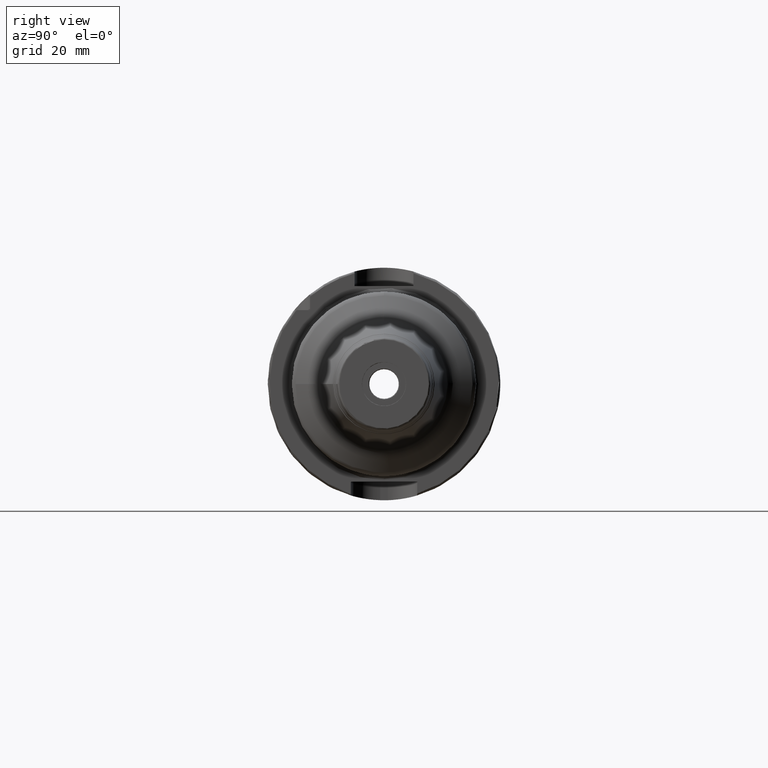
[diagram: clean part render]
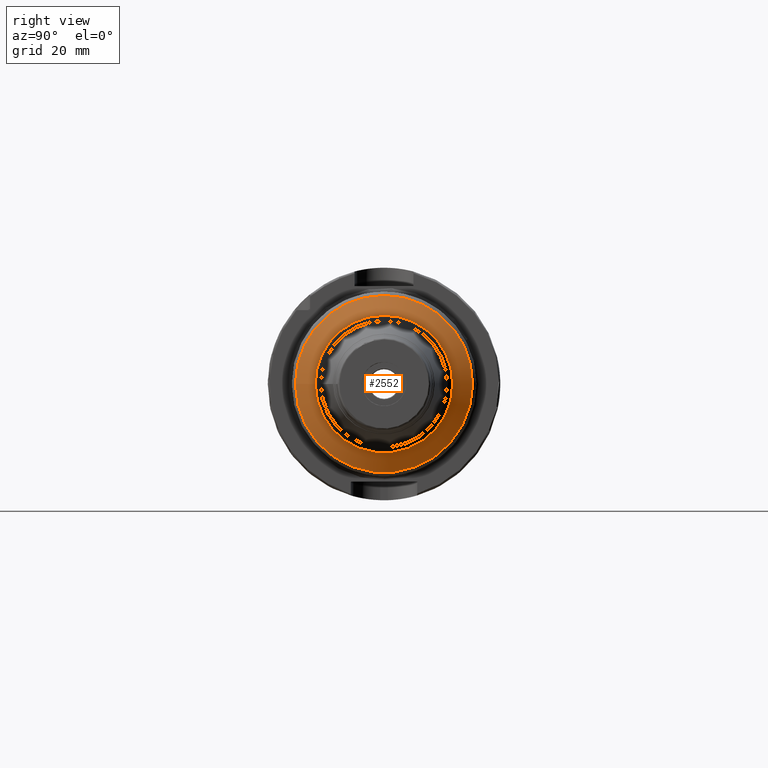
[diagram: same view with one face highlighted and labeled with its STEP entity id]
A machine part, right view. The second image highlights one B-rep face of the part: STEP entity #2552.
In plain terms, the highlighted conical surface has half-angle 60 deg.
Its self-contained STEP definition (entity closure, byte-faithful):
#97=CONICAL_SURFACE('',#2727,21.1083500677368,1.0471975511966);
#183=LINE('',#3987,#300);
#300=VECTOR('',#3131,21.1083500677368);
#446=FACE_OUTER_BOUND('',#583,.T.);
#583=EDGE_LOOP('',(#1704,#1705,#1706,#1707,#1708,#1709,#1710,#1711));
#737=CIRCLE('',#2720,18.627340422523);
#742=CIRCLE('',#2725,18.627340422523);
#743=CIRCLE('',#2726,18.627340422523);
#744=CIRCLE('',#2728,24.);
#745=CIRCLE('',#2729,24.);
#746=CIRCLE('',#2730,24.);
#970=VERTEX_POINT('',#3972);
#971=VERTEX_POINT('',#3973);
#975=VERTEX_POINT('',#3982);
#976=VERTEX_POINT('',#3986);
#977=VERTEX_POINT('',#3988);
#978=VERTEX_POINT('',#3990);
#1266=EDGE_CURVE('',#970,#971,#737,.T.);
#1271=EDGE_CURVE('',#971,#975,#742,.T.);
#1272=EDGE_CURVE('',#975,#970,#743,.T.);
#1273=EDGE_CURVE('',#975,#976,#183,.T.);
#1274=EDGE_CURVE('',#977,#976,#744,.T.);
#1275=EDGE_CURVE('',#978,#977,#745,.T.);
#1276=EDGE_CURVE('',#976,#978,#746,.T.);
#1704=ORIENTED_EDGE('',*,*,#1266,.F.);
#1705=ORIENTED_EDGE('',*,*,#1272,.F.);
#1706=ORIENTED_EDGE('',*,*,#1273,.T.);
#1707=ORIENTED_EDGE('',*,*,#1274,.F.);
#1708=ORIENTED_EDGE('',*,*,#1275,.F.);
#1709=ORIENTED_EDGE('',*,*,#1276,.F.);
#1710=ORIENTED_EDGE('',*,*,#1273,.F.);
#1711=ORIENTED_EDGE('',*,*,#1271,.F.);
#2552=ADVANCED_FACE('',(#446),#97,.T.);
#2720=AXIS2_PLACEMENT_3D('',#3974,#3115,#3116);
#2725=AXIS2_PLACEMENT_3D('',#3983,#3125,#3126);
#2726=AXIS2_PLACEMENT_3D('',#3984,#3127,#3128);
#2727=AXIS2_PLACEMENT_3D('',#3985,#3129,#3130);
#2728=AXIS2_PLACEMENT_3D('',#3989,#3132,#3133);
#2729=AXIS2_PLACEMENT_3D('',#3991,#3134,#3135);
#2730=AXIS2_PLACEMENT_3D('',#3992,#3136,#3137);
#3115=DIRECTION('center_axis',(1.,0.,0.));
#3116=DIRECTION('ref_axis',(0.,-1.,3.06161699786838E-17));
#3125=DIRECTION('center_axis',(1.,0.,0.));
#3126=DIRECTION('ref_axis',(0.,-1.,3.06161699786838E-17));
#3127=DIRECTION('center_axis',(1.,0.,0.));
#3128=DIRECTION('ref_axis',(0.,-1.,3.06161699786838E-17));
#3129=DIRECTION('center_axis',(-1.,0.,0.));
#3130=DIRECTION('ref_axis',(0.,1.,0.));
#3131=DIRECTION('',(-0.5,-0.866025403784438,-1.06057523872491E-16));
#3132=DIRECTION('center_axis',(-1.,0.,0.));
#3133=DIRECTION('ref_axis',(0.,-1.,3.06161699786838E-17));
#3134=DIRECTION('center_axis',(-1.,0.,0.));
#3135=DIRECTION('ref_axis',(0.,-1.,3.06161699786838E-17));
#3136=DIRECTION('center_axis',(-1.,0.,0.));
#3137=DIRECTION('ref_axis',(0.,-1.,3.06161699786838E-17));
#3972=CARTESIAN_POINT('',(54.1855664505423,18.627340422523,-1.14059564125354E-15));
#3973=CARTESIAN_POINT('',(54.1855664505423,-2.28119128250709E-15,18.627340422523));
#3974=CARTESIAN_POINT('Origin',(54.1855664505423,0.,-2.85148910313386E-15));
#3982=CARTESIAN_POINT('',(54.1855664505424,-18.627340422523,-2.28119128250709E-15));
#3983=CARTESIAN_POINT('Origin',(54.1855664505423,0.,-2.85148910313386E-15));
#3984=CARTESIAN_POINT('Origin',(54.1855664505423,0.,-2.85148910313386E-15));
#3985=CARTESIAN_POINT('Origin',(52.7531548640161,0.,0.));
#3986=CARTESIAN_POINT('',(51.0836599972218,-24.,-2.93915231795365E-15));
#3987=CARTESIAN_POINT('',(52.7531548640161,-21.1083500677368,-2.58502733457357E-15));
#3988=CARTESIAN_POINT('',(51.0836599972218,24.,-7.34788079488412E-15));
#3989=CARTESIAN_POINT('Origin',(51.0836599972218,0.,-3.67394039744206E-15));
#3990=CARTESIAN_POINT('',(51.0836599972218,-2.93915231795365E-15,24.));
#3991=CARTESIAN_POINT('Origin',(51.0836599972218,0.,-3.67394039744206E-15));
#3992=CARTESIAN_POINT('Origin',(51.0836599972218,0.,-3.67394039744206E-15));